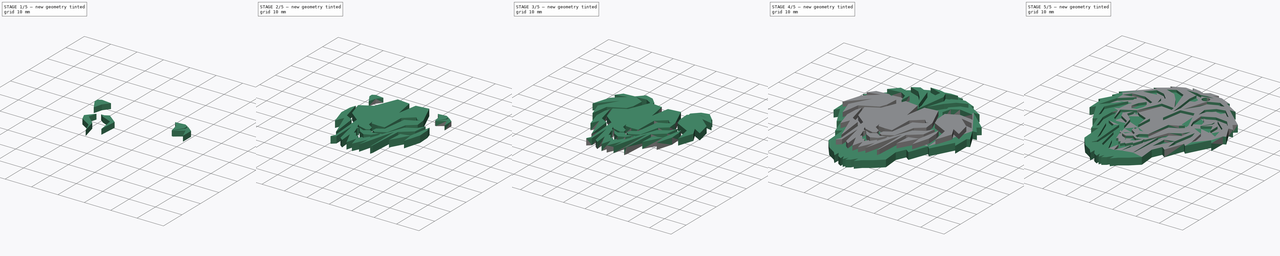
[diagram: build sequence overview — one tinted view per stage of 5, left to right]
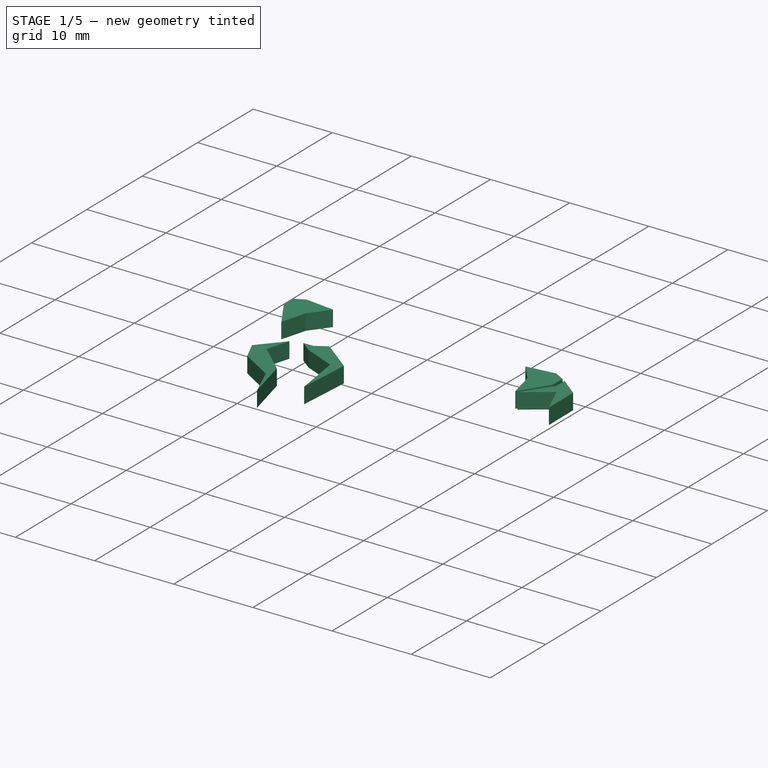
[diagram: stage 1 of 5 — iso view after this stage's code; geometry added in this stage tinted green]
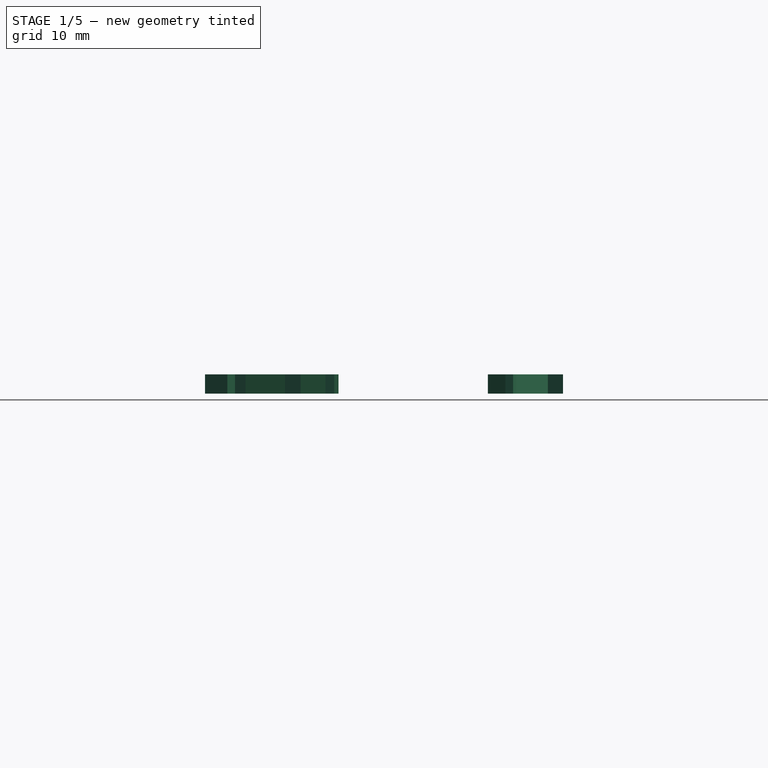
[diagram: stage 1 of 5 — front view after this stage's code; geometry added in this stage tinted green]
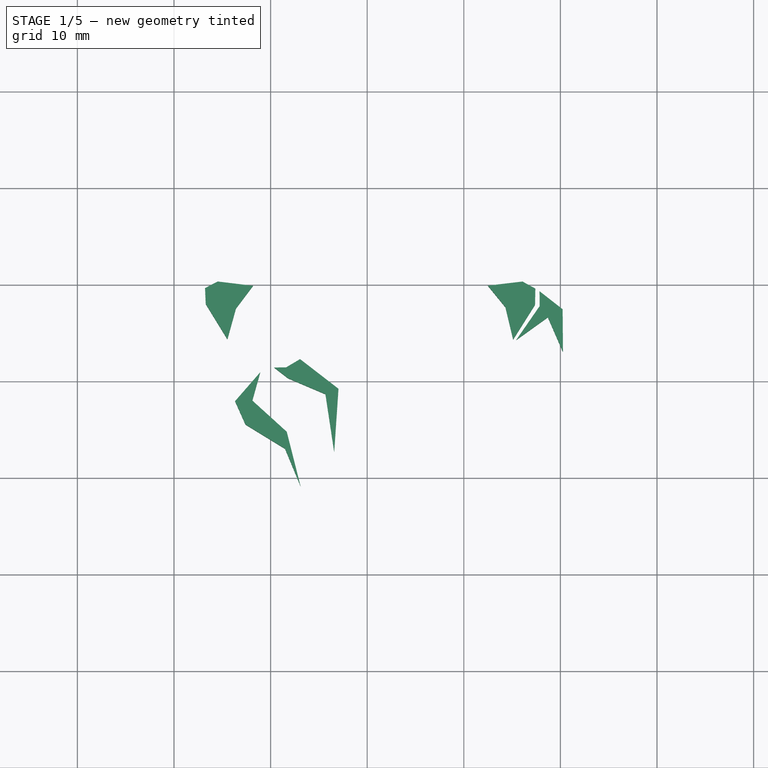
[diagram: stage 1 of 5 — top view after this stage's code; geometry added in this stage tinted green]
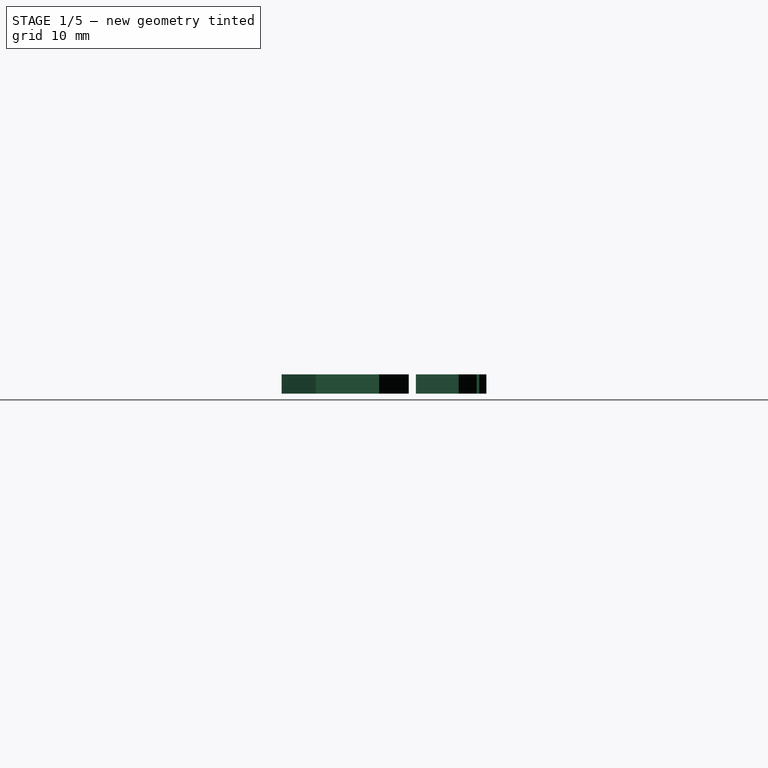
[diagram: stage 1 of 5 — right view after this stage's code; geometry added in this stage tinted green]
FCSTD DOCUMENT  (FreeCAD 0.14R3702 (Git))
Label: LeonAthletic
License: CreativeCommons Attribution-ShareAlike
LicenseURL: http://creativecommons.org/licenses/by-sa/4.0/
objects: Part::Feature×19, Part::Extrusion×17, Part::MultiFuse×4, Part::Cut×3, Sketcher::SketchObject×2, App::DocumentObjectGroup×1, Part::Cylinder×1
note: 46 computed .brp shape members not serialized (recipe doc carries the construction recipe); baked Part::Feature solids carry a one-line shape summary decoded from their .brp

FEATURE [Part::Extrusion] Extrude026
  Base = -> path3973009
  Dir = (0,0,2)
  Solid = true
FEATURE [Part::Extrusion] Extrude027
  Base = -> path3973010
  Dir = (0,0,2)
  Solid = true
FEATURE [Part::Extrusion] Extrude028
  Base = -> path3973011
  Dir = (0,0,2)
  Solid = true
FEATURE [Part::Extrusion] Extrude029
  Base = -> path3973012
  Dir = (0,0,2)
  Solid = true
FEATURE [Part::Extrusion] Extrude030
  Base = -> path3973013
  Dir = (0,0,2)
  Solid = true
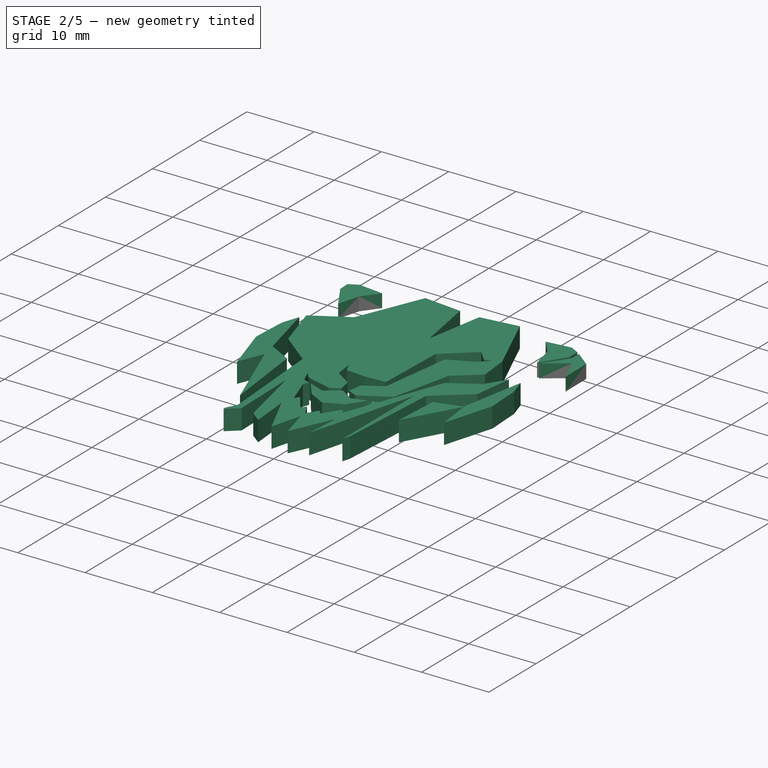
[diagram: stage 2 of 5 — iso view after this stage's code; geometry added in this stage tinted green]
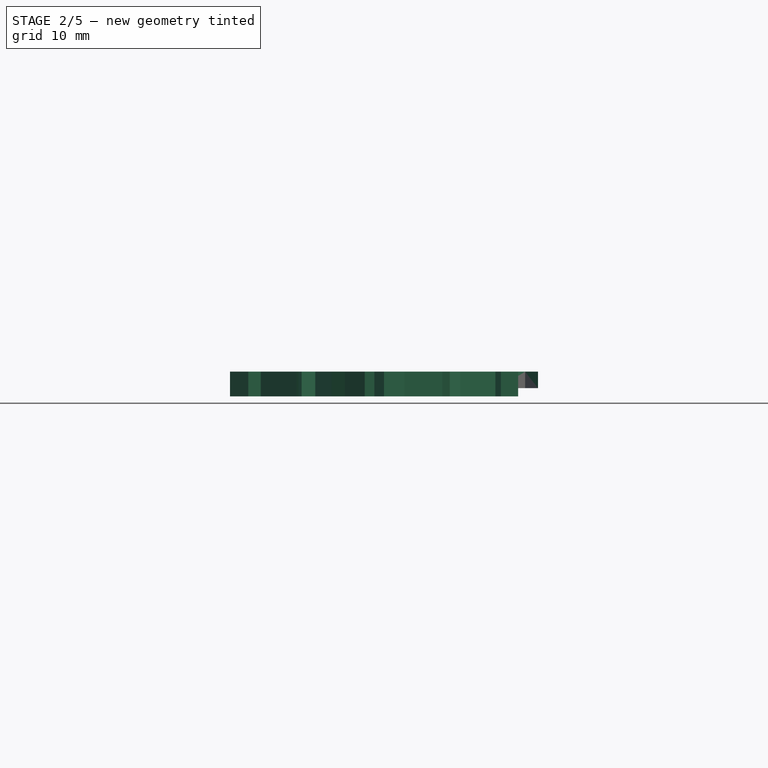
[diagram: stage 2 of 5 — front view after this stage's code; geometry added in this stage tinted green]
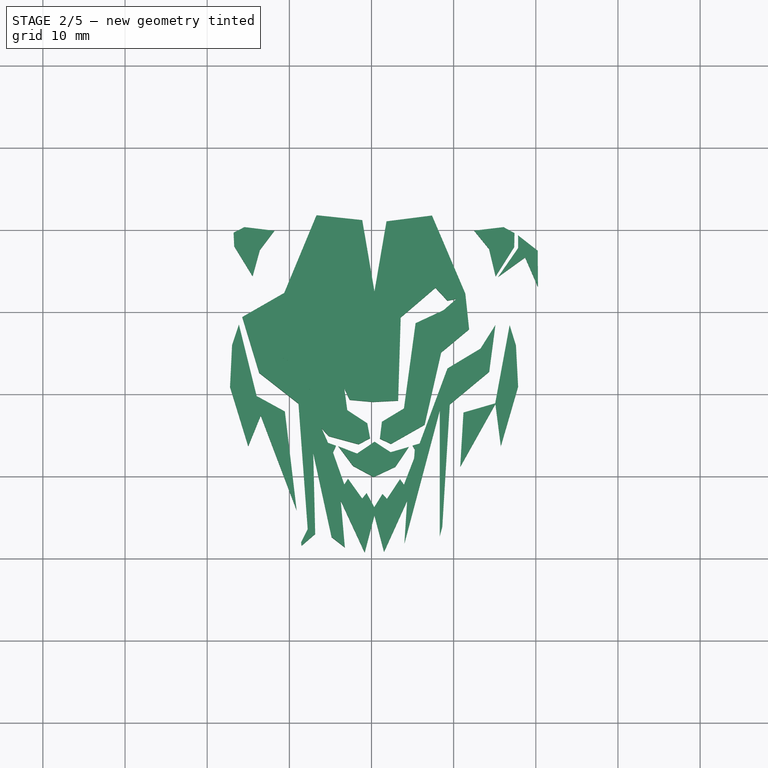
[diagram: stage 2 of 5 — top view after this stage's code; geometry added in this stage tinted green]
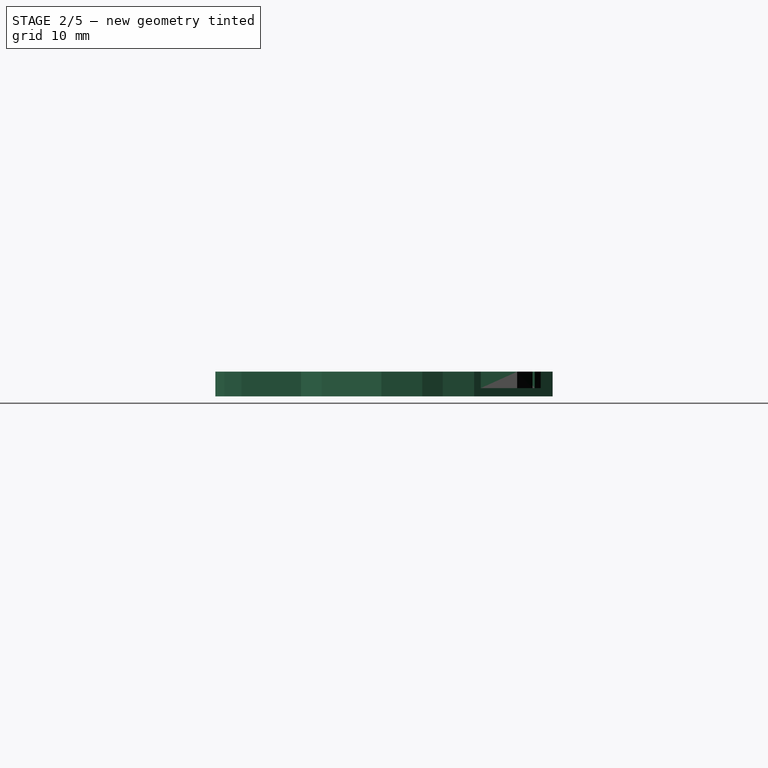
[diagram: stage 2 of 5 — right view after this stage's code; geometry added in this stage tinted green]
FEATURE [Part::Extrusion] Extrude018
  Base = -> path3973008
  Dir = (0,0,3)
  Solid = true
FEATURE [Part::Extrusion] Extrude019
  Base = -> path3973014
  Dir = (0,0,3)
  Solid = true
FEATURE [Part::Extrusion] Extrude020
  Base = -> path3973015
  Dir = (0,0,3)
  Solid = true
FEATURE [Part::Extrusion] Extrude021
  Base = -> path3973016
  Dir = (0,0,3)
  Solid = true
FEATURE [Part::MultiFuse] Fusion002
  Placement = pos=(0,0,1) rot=(0,0,1;0rad)
  Shapes = -> [Extrude026,Extrude030,Extrude028,Extrude027,Extrude029]
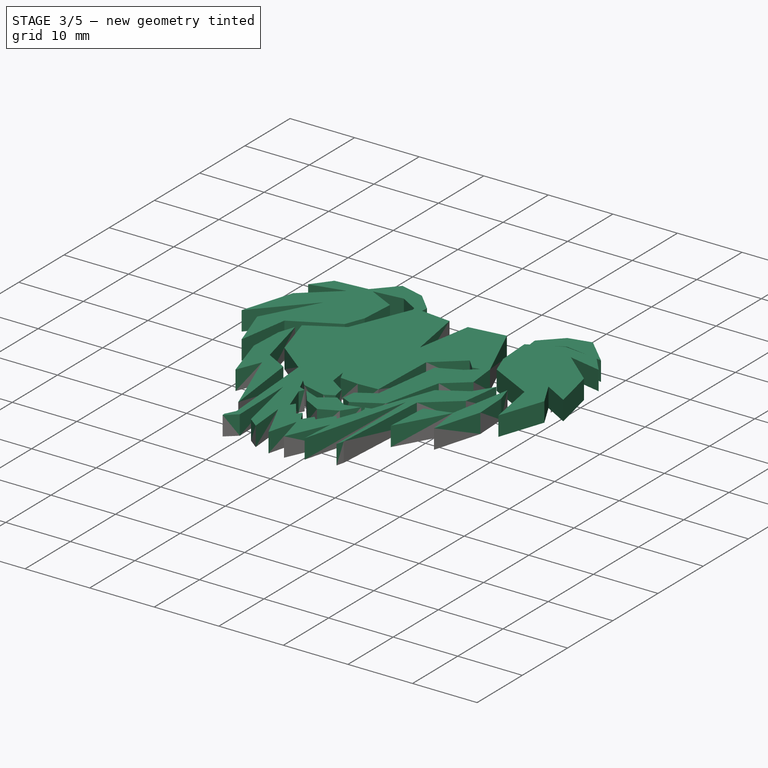
[diagram: stage 3 of 5 — iso view after this stage's code; geometry added in this stage tinted green]
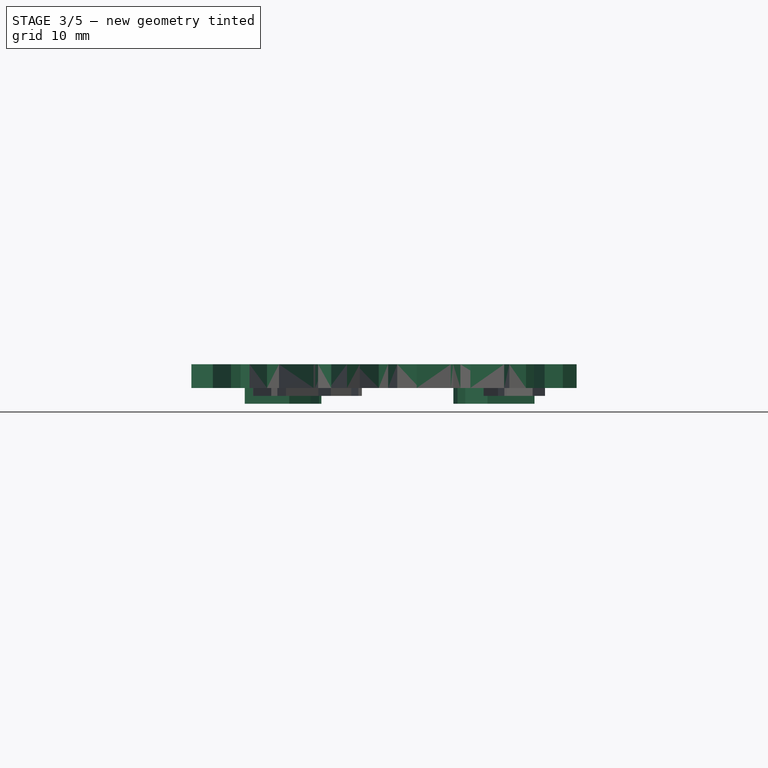
[diagram: stage 3 of 5 — front view after this stage's code; geometry added in this stage tinted green]
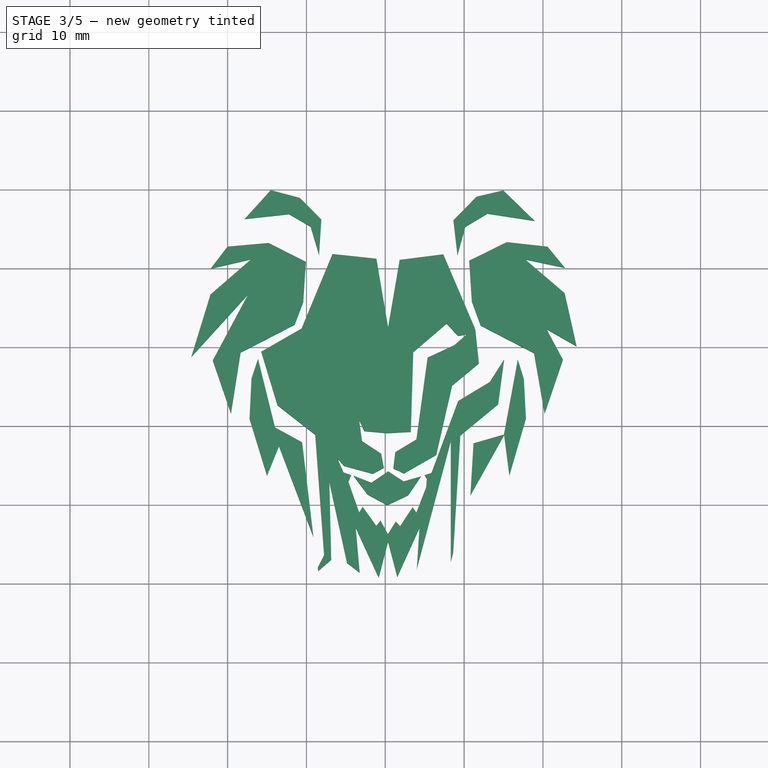
[diagram: stage 3 of 5 — top view after this stage's code; geometry added in this stage tinted green]
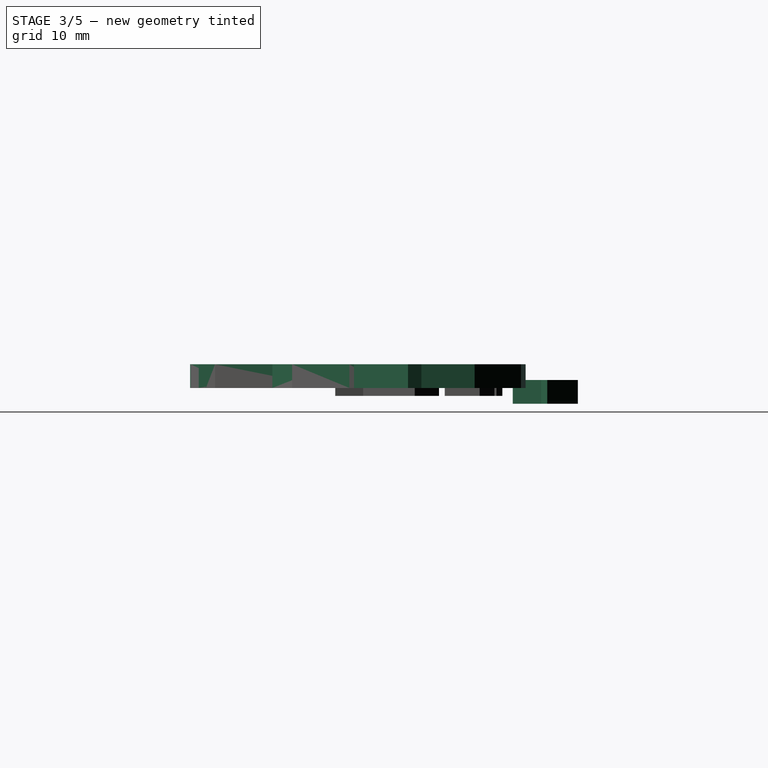
[diagram: stage 3 of 5 — right view after this stage's code; geometry added in this stage tinted green]
FEATURE [Part::Extrusion] Extrude009
  Base = -> path3973004
  Dir = (0,0,3)
  Solid = true
FEATURE [Part::Extrusion] Extrude010
  Base = -> path3973005
  Dir = (0,0,3)
  Solid = true
FEATURE [Part::Extrusion] Extrude016
  Base = -> path3973006
  Dir = (0,0,3)
  Solid = true
FEATURE [Part::Extrusion] Extrude017
  Base = -> path3973007
  Dir = (0,0,3)
  Solid = true
FEATURE [Part::MultiFuse] Fusion001
  Placement = pos=(0,0,2) rot=(0,0,1;0rad)
  Shapes = -> [Extrude016,Extrude017,Extrude020,Extrude019,Extrude018,Extrude021]
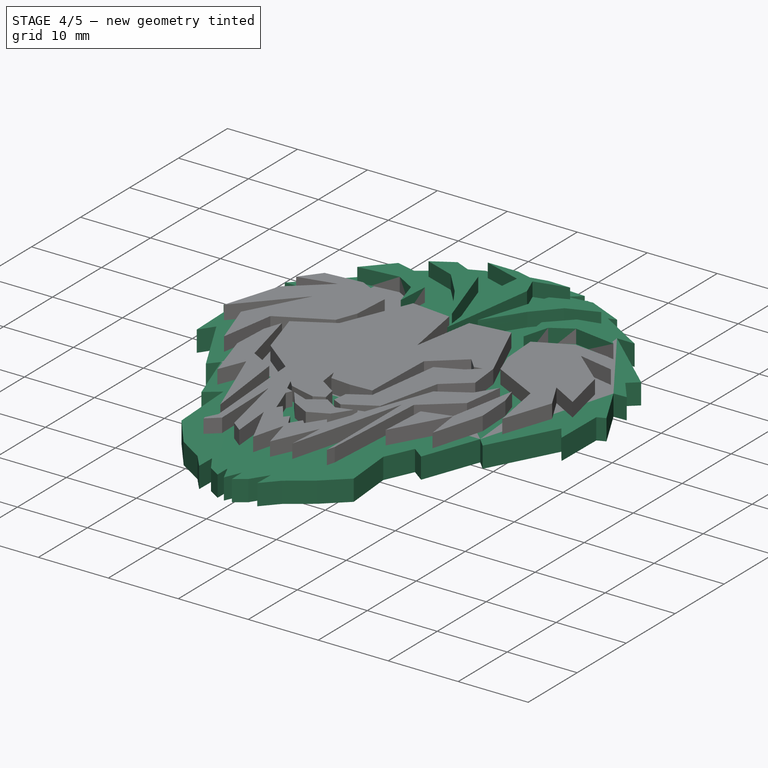
[diagram: stage 4 of 5 — iso view after this stage's code; geometry added in this stage tinted green]
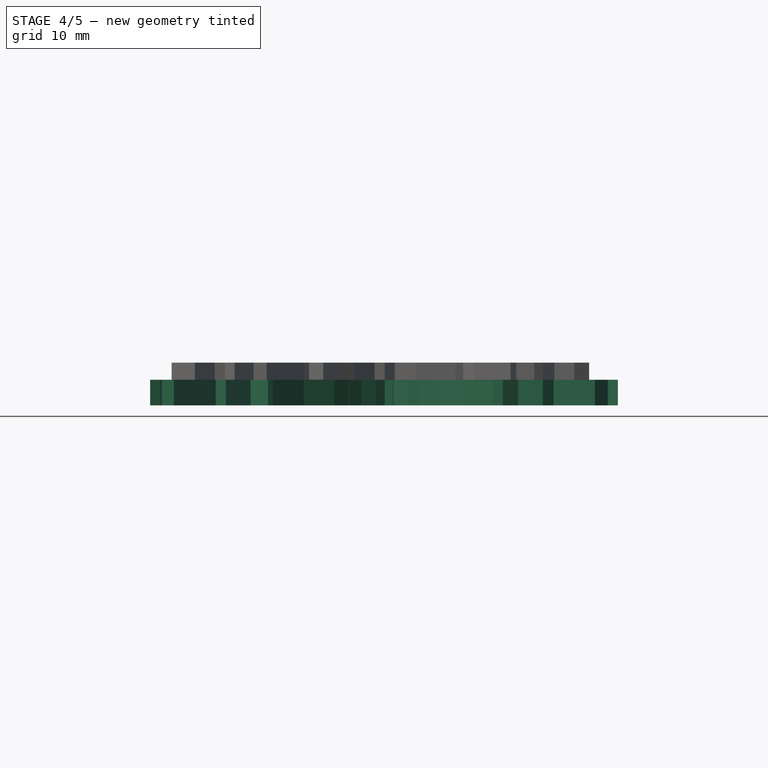
[diagram: stage 4 of 5 — front view after this stage's code; geometry added in this stage tinted green]
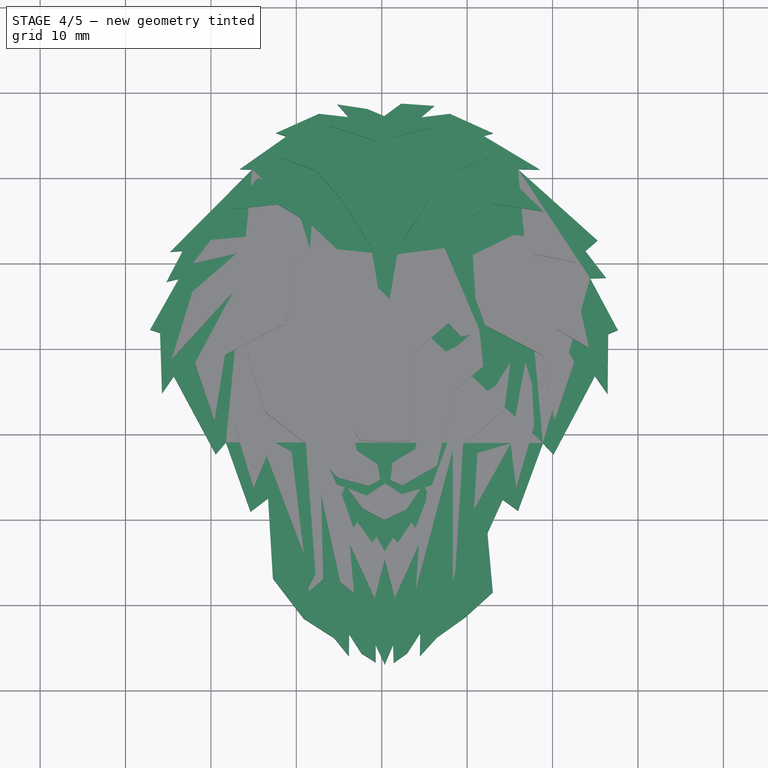
[diagram: stage 4 of 5 — top view after this stage's code; geometry added in this stage tinted green]
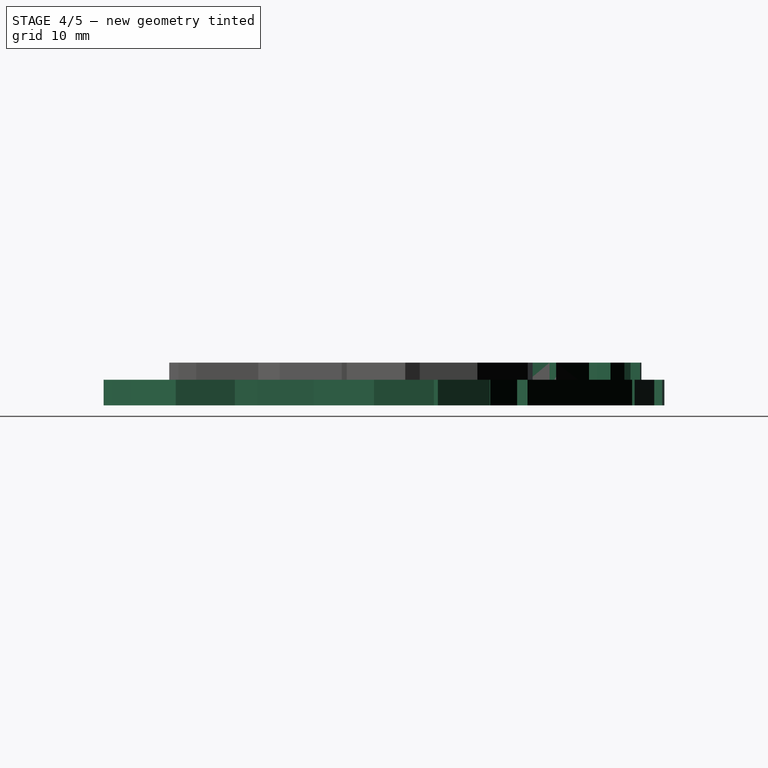
[diagram: stage 4 of 5 — right view after this stage's code; geometry added in this stage tinted green]
FEATURE [Sketcher::SketchObject] Sketch  label="hole-sketch"
  Placement = pos=(0,0,3.3) rot=(0,0,1;0rad)
  sketch-geometry (1):
    g0: Circle CenterX=0 CenterY=15.1 CenterZ=0 NormalX=0 NormalY=0 NormalZ=1 Radius=1.5
  constraints (3):
    c: Radius(g0) = 1.5
    c: PointOnObject(g0,g-2)
    c: DistanceY(g-1,g0) = 15.1
FEATURE [Part::Feature] Sweep  label="key-ring-model-1"
  Placement = pos=(-1.2,24.7546,1.6391) rot=(0.333333,0.881918,0.333333;1.69612rad)
  shape: bbox 3.31 x 27.02 x 26.33 mm, 4 faces (baked)
FEATURE [Part::Feature] Cut  label="key-model-1"
  Placement = pos=(-5.46976,31.0266,0) rot=(0,0,1;0.517888rad)
  shape: bbox 49.82 x 36.6 x 2.3 mm, 44 faces (baked)
FEATURE [App::DocumentObjectGroup] Group  label="Assembly"
  Group = -> [Sweep,Cut]
FEATURE [Sketcher::SketchObject] Sketch001
  Placement = pos=(0,0,3.3) rot=(0,0,1;0rad)
  sketch-geometry (4):
    g0: LineSegment StartX=-9.52628 StartY=-5.5 StartZ=0 EndX=0 EndY=11 EndZ=0
    g1: LineSegment StartX=0 StartY=11 StartZ=0 EndX=9.52628 EndY=-5.5 EndZ=0
    g2: LineSegment StartX=9.52628 StartY=-5.5 StartZ=0 EndX=-9.52628 EndY=-5.5 EndZ=0
    g3: Circle [constr] CenterX=0 CenterY=0 CenterZ=0 NormalX=0 NormalY=0 NormalZ=1 Radius=11
  constraints (11):
    c: Coincident(g0,g1)
    c: Coincident(g1,g2)
    c: Coincident(g2,g0)
    c: Horizontal(g2)
    c: PointOnObject(g0,g-2)
    c: Coincident(g3,g-1)
    c: PointOnObject(g0,g3)
    c: PointOnObject(g1,g3)
    c: PointOnObject(g0,g3)
    c: Equal(g0,g2)
    c: Radius(g3) = 11
FEATURE [Part::Feature] path3973
  shape: bbox 54.76 x 65.65 x 2e-07 mm, 1 faces, 0 solids (baked)
FEATURE [Part::Feature] path3973001
  shape: bbox 11.89 x 17.38 x 2e-07 mm, 1 faces, 0 solids (baked)
FEATURE [Part::Feature] path3973002
  shape: bbox 10.6 x 12.09 x 2e-07 mm, 1 faces, 0 solids (baked)
FEATURE [Part::Feature] path3973003
  shape: bbox 10.61 x 11.81 x 2e-07 mm, 1 faces, 0 solids (baked)
FEATURE [Part::Feature] path3973004
  shape: bbox 9.721 x 8.24 x 2e-07 mm, 1 faces, 0 solids (baked)
FEATURE [Part::Feature] path3973005
  shape: bbox 10.29 x 8.222 x 2e-07 mm, 1 faces, 0 solids (baked)
FEATURE [Part::Feature] path3973006
  shape: bbox 13.63 x 21.76 x 2e-07 mm, 1 faces, 0 solids (baked)
FEATURE [Part::Feature] path3973007
  shape: bbox 14.53 x 21.64 x 2e-07 mm, 1 faces, 0 solids (baked)
FEATURE [Part::Feature] path3973008
  shape: bbox 30.81 x 41.05 x 2e-07 mm, 1 faces, 0 solids (baked)
FEATURE [Part::Feature] path3973009
  shape: bbox 4.975 x 5.983 x 2e-07 mm, 1 faces, 0 solids (baked)
FEATURE [Part::Feature] path3973010
  shape: bbox 4.919 x 6 x 2e-07 mm, 1 faces, 0 solids (baked)
FEATURE [Part::Feature] path3973011
  shape: bbox 4.85 x 6.297 x 2e-07 mm, 1 faces, 0 solids (baked)
FEATURE [Part::Feature] path3973012
  shape: bbox 6.663 x 9.618 x 2e-07 mm, 1 faces, 0 solids (baked)
FEATURE [Part::Feature] path3973013
  shape: bbox 6.784 x 11.8 x 2e-07 mm, 1 faces, 0 solids (baked)
FEATURE [Part::Feature] path3973014
  shape: bbox 8.11 x 22.61 x 2e-07 mm, 1 faces, 0 solids (baked)
FEATURE [Part::Feature] path3973015
  shape: bbox 7.051 x 17.25 x 2e-07 mm, 1 faces, 0 solids (baked)
FEATURE [Part::Feature] path3973016
  shape: bbox 8.558 x 4.286 x 2e-07 mm, 1 faces, 0 solids (baked)
FEATURE [Part::Extrusion] Extrude001
  Base = -> path3973
  Dir = (0,0,3)
  Solid = true
FEATURE [Part::Extrusion] Extrude006
  Base = -> path3973001
  Dir = (0,0,3)
  Solid = true
FEATURE [Part::Extrusion] Extrude007
  Base = -> path3973002
  Dir = (0,0,3)
  Solid = true
FEATURE [Part::Extrusion] Extrude008
  Base = -> path3973003
  Dir = (0,0,3)
  Solid = true
FEATURE [Part::MultiFuse] Fusion
  Placement = pos=(0,0,2) rot=(0,0,1;0rad)
  Shapes = -> [Extrude006,Extrude008,Extrude009,Extrude007,Extrude010]
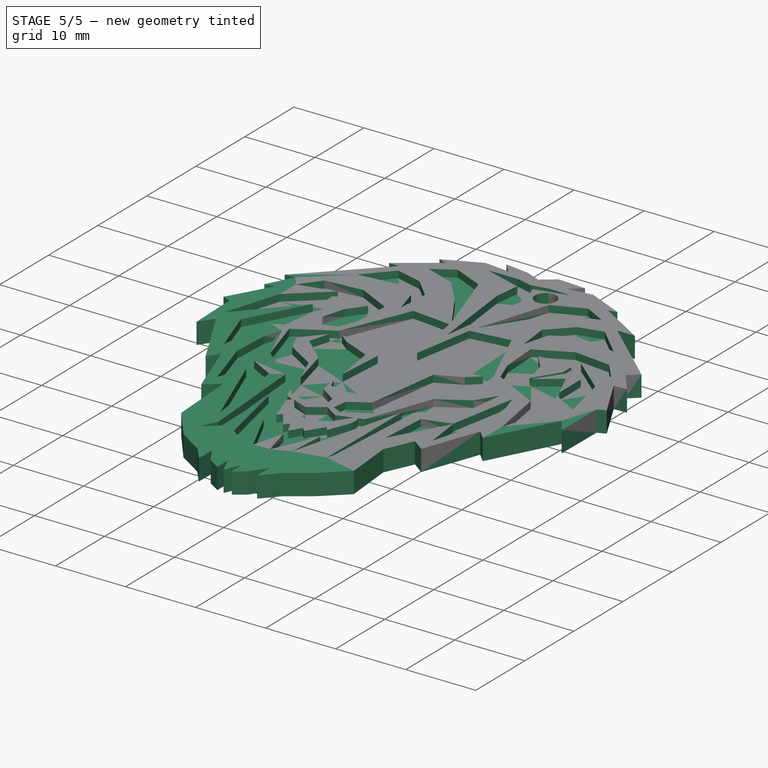
[diagram: stage 5 of 5 — iso view after this stage's code; geometry added in this stage tinted green]
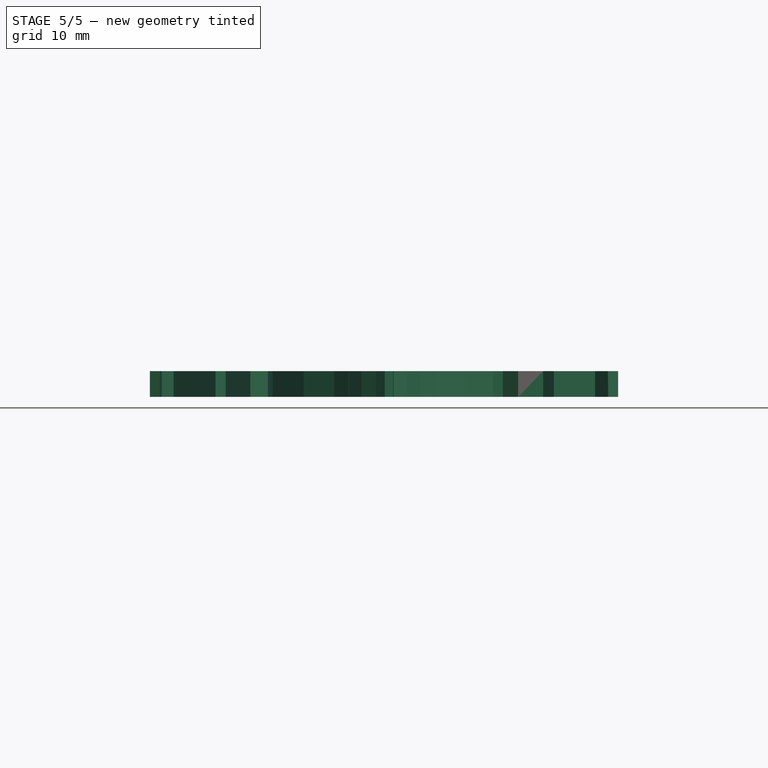
[diagram: stage 5 of 5 — front view after this stage's code; geometry added in this stage tinted green]
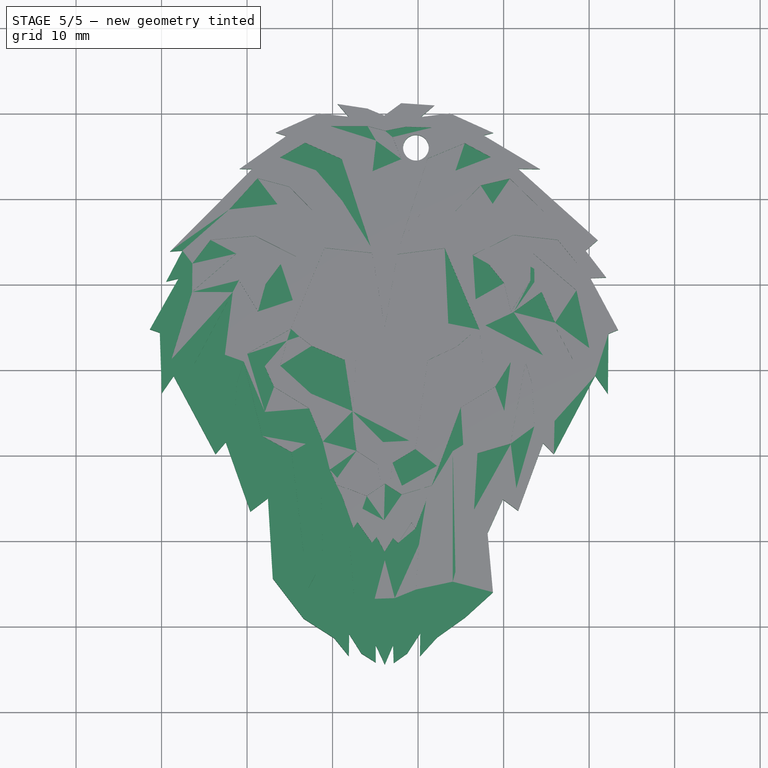
[diagram: stage 5 of 5 — top view after this stage's code; geometry added in this stage tinted green]
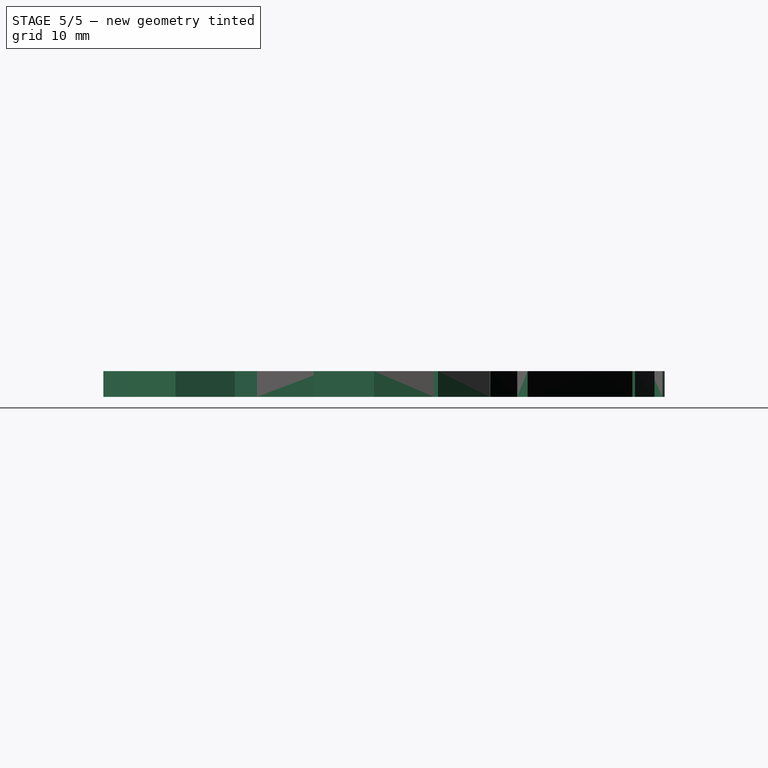
[diagram: stage 5 of 5 — right view after this stage's code; geometry added in this stage tinted green]
FEATURE [Part::Cut] Cut001
  Base = -> Extrude001
  Tool = -> Fusion
FEATURE [Part::Cut] Cut002
  Base = -> Cut001
  Tool = -> Fusion001
FEATURE [Part::Cylinder] Cylinder001  label="Cilindro"
  Angle = 360
  Height = 10
  Placement = pos=(4,13.5,-4) rot=(0,0,1;0rad)
  Radius = 1.5
FEATURE [Part::MultiFuse] Fusion003
  Placement = pos=(0,-10,0) rot=(0,0,1;0rad)
  Shapes = -> [Cut002,Fusion002]
FEATURE [Part::Cut] Cut003
  Base = -> Fusion003
  Placement = pos=(-4.25,2.5,0) rot=(0,0,1;0rad)
  Tool = -> Cylinder001
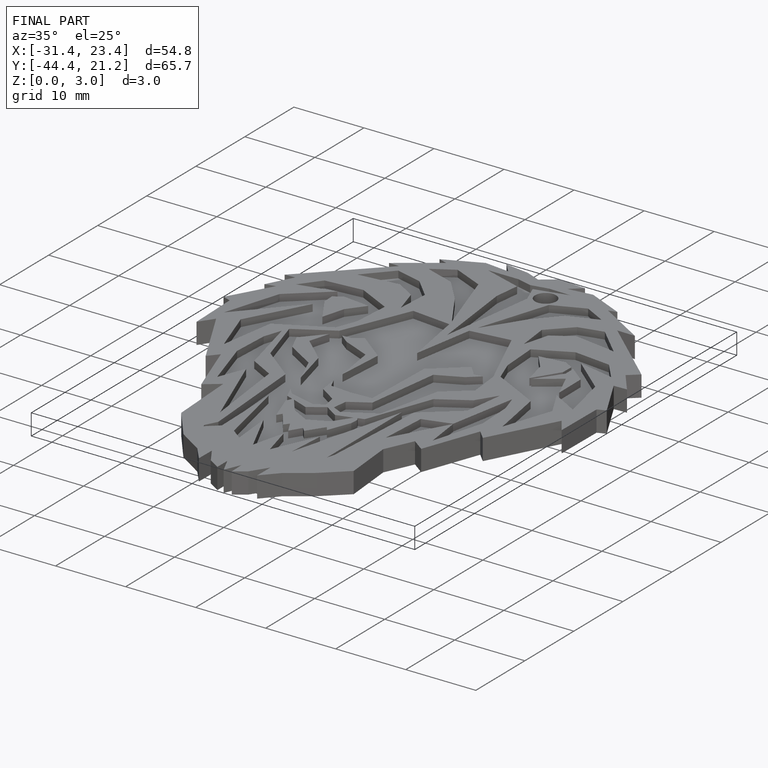
[diagram: finished part — iso view with bounding-box wireframe]
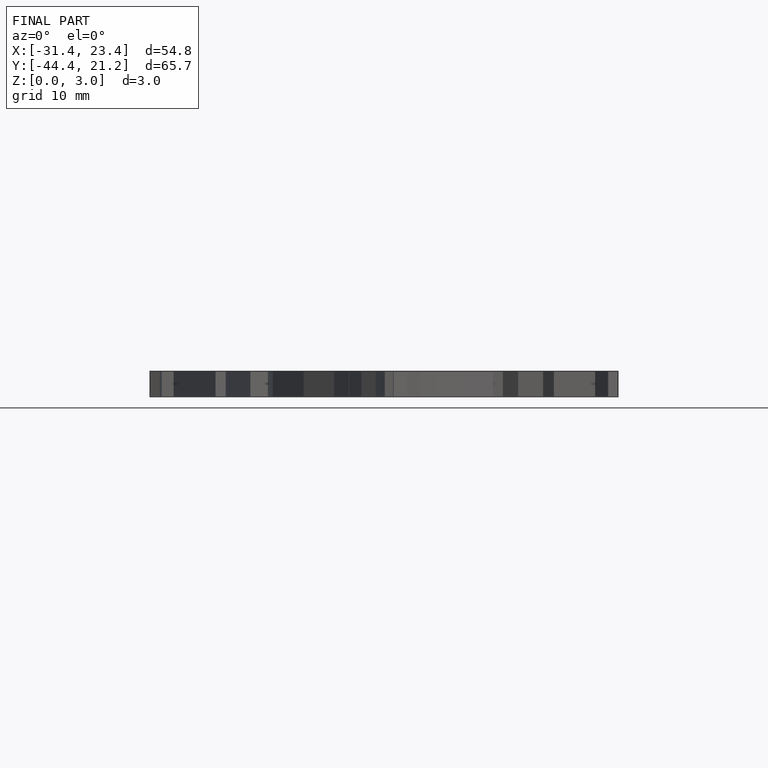
[diagram: finished part — front view with bounding-box wireframe]
